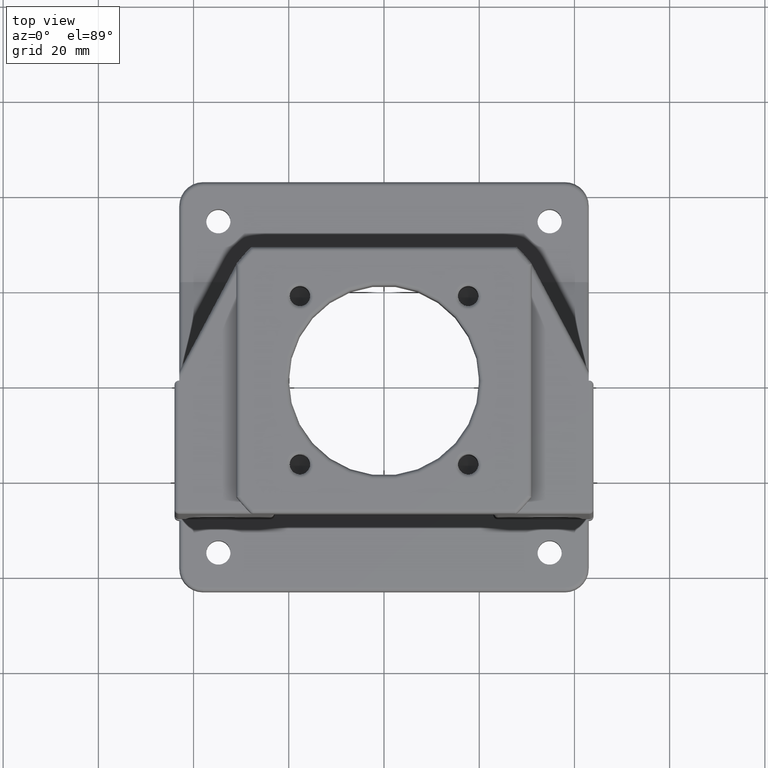
[diagram: clean part render]
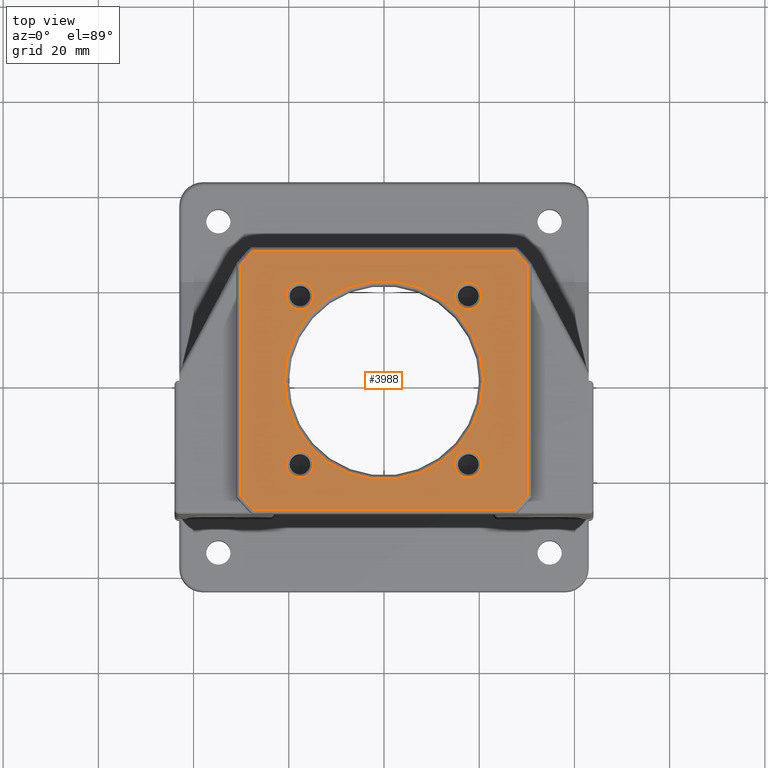
[diagram: same view with one face highlighted and labeled with its STEP entity id]
A machine part, top view. The second image highlights one B-rep face of the part: STEP entity #3988.
In plain terms, the highlighted planar face has unit normal (-0, 0, 1).
Its self-contained STEP definition (entity closure, byte-faithful):
#893 = CARTESIAN_POINT ( 'NONE',  ( 27.48726978075490000, -27.09999999999997700, 86.00000000000000000 ) ) ;
#969 = VERTEX_POINT ( 'NONE', #5564 ) ;
#1026 = VERTEX_POINT ( 'NONE', #5553 ) ;
#1119 = VERTEX_POINT ( 'NONE', #893 ) ;
#1343 = CIRCLE ( 'NONE', #1354, 38.60000000000000100 ) ;
#1346 = CIRCLE ( 'NONE', #1357, 38.60000000000000100 ) ;
#1348 = CIRCLE ( 'NONE', #1352, 38.60000000000000100 ) ;
#1351 = VECTOR ( 'NONE', #1622, 1000.000000000000000 ) ;
#1352 = AXIS2_PLACEMENT_3D ( 'NONE', #1623, #1624, #1625 ) ;
#1353 = VECTOR ( 'NONE', #1627, 1000.000000000000000 ) ;
#1354 = AXIS2_PLACEMENT_3D ( 'NONE', #1628, #1629, #1630 ) ;
#1355 = VECTOR ( 'NONE', #1632, 1000.000000000000000 ) ;
#1356 = VECTOR ( 'NONE', #1634, 1000.000000000000000 ) ;
#1357 = AXIS2_PLACEMENT_3D ( 'NONE', #1635, #1636, #1637 ) ;
#1551 = PLANE ( 'NONE',  #6514 ) ;
#1552 = CARTESIAN_POINT ( 'NONE',  ( -30.99999999999998900, -27.99999999999997900, 86.00000000000000000 ) ) ;
#1553 = DIRECTION ( 'NONE',  ( -0.0000000000000000000, 0.0000000000000000000, 1.000000000000000000 ) ) ;
#1554 = DIRECTION ( 'NONE',  ( 1.000000000000000000, 0.0000000000000000000, 0.0000000000000000000 ) ) ;
#1621 = CARTESIAN_POINT ( 'NONE',  ( -30.09999999999998700, -24.47958332978730700, 86.00000000000000000 ) ) ;
#1622 = DIRECTION ( 'NONE',  ( 1.239088197126291300E-016, -1.000000000000000000, 0.0000000000000000000 ) ) ;
#1623 = CARTESIAN_POINT ( 'NONE',  ( 0.0000000000000000000, 0.0000000000000000000, 86.00000000000000000 ) ) ;
#1624 = DIRECTION ( 'NONE',  ( -0.0000000000000000000, 0.0000000000000000000, 1.000000000000000000 ) ) ;
#1625 = DIRECTION ( 'NONE',  ( 1.000000000000000000, 0.0000000000000000000, 0.0000000000000000000 ) ) ;
#1626 = CARTESIAN_POINT ( 'NONE',  ( -30.99999999999998900, 27.10000000000000100, 86.00000000000000000 ) ) ;
#1627 = DIRECTION ( 'NONE',  ( -1.000000000000000000, 0.0000000000000000000, -0.0000000000000000000 ) ) ;
#1628 = CARTESIAN_POINT ( 'NONE',  ( 0.0000000000000000000, 0.0000000000000000000, 86.00000000000000000 ) ) ;
#1629 = DIRECTION ( 'NONE',  ( -0.0000000000000000000, 0.0000000000000000000, 1.000000000000000000 ) ) ;
#1630 = DIRECTION ( 'NONE',  ( 1.000000000000000000, 0.0000000000000000000, 0.0000000000000000000 ) ) ;
#1631 = CARTESIAN_POINT ( 'NONE',  ( 30.09999999999999800, 24.47958332978728900, 86.00000000000000000 ) ) ;
#1632 = DIRECTION ( 'NONE',  ( -1.239088197126291300E-016, 1.000000000000000000, -0.0000000000000000000 ) ) ;
#1633 = CARTESIAN_POINT ( 'NONE',  ( 27.86126343151009300, -27.09999999999997700, 86.00000000000000000 ) ) ;
#1634 = DIRECTION ( 'NONE',  ( 1.000000000000000000, 1.734723475976806800E-016, 0.0000000000000000000 ) ) ;
#1635 = CARTESIAN_POINT ( 'NONE',  ( 0.0000000000000000000, 0.0000000000000000000, 86.00000000000000000 ) ) ;
#1636 = DIRECTION ( 'NONE',  ( -0.0000000000000000000, 0.0000000000000000000, 1.000000000000000000 ) ) ;
#1637 = DIRECTION ( 'NONE',  ( 1.000000000000000000, 0.0000000000000000000, 0.0000000000000000000 ) ) ;
#2225 = CARTESIAN_POINT ( 'NONE',  ( 30.09999999999999800, 24.16505741768474600, 86.00000000000000000 ) ) ;
#2230 = CARTESIAN_POINT ( 'NONE',  ( -30.09999999999999400, 24.16505741768474300, 86.00000000000000000 ) ) ;
#2233 = CARTESIAN_POINT ( 'NONE',  ( -27.48726978075487200, 27.10000000000000100, 86.00000000000000000 ) ) ;
#2234 = CARTESIAN_POINT ( 'NONE',  ( -30.09999999999998700, -24.16505741768475700, 86.00000000000000000 ) ) ;
#2235 = CARTESIAN_POINT ( 'NONE',  ( 27.48726978075487200, 27.10000000000000100, 86.00000000000000000 ) ) ;
#2761 = CARTESIAN_POINT ( 'NONE',  ( 14.77987732352786100, 17.67766952966372100, 86.00000000000000000 ) ) ;
#2806 = CARTESIAN_POINT ( 'NONE',  ( 20.90000000000000200, 0.0000000000000000000, 86.00000000000000000 ) ) ;
#2807 = CARTESIAN_POINT ( 'NONE',  ( -20.90000000000000200, 2.559511810217968700E-015, 86.00000000000000000 ) ) ;
#2810 = CARTESIAN_POINT ( 'NONE',  ( -14.77987732352798900, 17.67766952966358600, 86.00000000000000000 ) ) ;
#2811 = CARTESIAN_POINT ( 'NONE',  ( -20.57546173579957500, 17.67766952966358600, 86.00000000000000000 ) ) ;
#2814 = CARTESIAN_POINT ( 'NONE',  ( -14.77987732352798600, -17.67766952966359300, 86.00000000000000000 ) ) ;
#2815 = CARTESIAN_POINT ( 'NONE',  ( -20.57546173579957100, -17.67766952966359300, 86.00000000000000000 ) ) ;
#2818 = CARTESIAN_POINT ( 'NONE',  ( 20.57546173579944700, -17.67766952966372100, 86.00000000000000000 ) ) ;
#2819 = CARTESIAN_POINT ( 'NONE',  ( 14.77987732352786100, -17.67766952966372100, 86.00000000000000000 ) ) ;
#2821 = CARTESIAN_POINT ( 'NONE',  ( 20.57546173579944700, 17.67766952966372100, 86.00000000000000000 ) ) ;
#2977 = CARTESIAN_POINT ( 'NONE',  ( 17.67766952966365300, 17.67766952966372100, 86.00000000000000000 ) ) ;
#3000 = DIRECTION ( 'NONE',  ( 1.000000000000000000, 0.0000000000000000000, 0.0000000000000000000 ) ) ;
#3002 = DIRECTION ( 'NONE',  ( 0.0000000000000000000, -0.0000000000000000000, -1.000000000000000000 ) ) ;
#3116 = ORIENTED_EDGE ( 'NONE', *, *, #3899, .T. ) ;
#3118 = ORIENTED_EDGE ( 'NONE', *, *, #3898, .T. ) ;
#3120 = ORIENTED_EDGE ( 'NONE', *, *, #3900, .T. ) ;
#3121 = ORIENTED_EDGE ( 'NONE', *, *, #3834, .T. ) ;
#3122 = ORIENTED_EDGE ( 'NONE', *, *, #3901, .T. ) ;
#3123 = ORIENTED_EDGE ( 'NONE', *, *, #3830, .T. ) ;
#3124 = ORIENTED_EDGE ( 'NONE', *, *, #3902, .T. ) ;
#3125 = ORIENTED_EDGE ( 'NONE', *, *, #3826, .T. ) ;
#3128 = ORIENTED_EDGE ( 'NONE', *, *, #3822, .T. ) ;
#3129 = ORIENTED_EDGE ( 'NONE', *, *, #3818, .T. ) ;
#3365 = EDGE_LOOP ( 'NONE', ( #3120, #3125 ) ) ;
#3368 = EDGE_LOOP ( 'NONE', ( #3116, #3123 ) ) ;
#3369 = EDGE_LOOP ( 'NONE', ( #3725, #3723, #3724, #3722, #3721, #3720, #3719, #3718 ) ) ;
#3371 = EDGE_LOOP ( 'NONE', ( #3118, #3121 ) ) ;
#3385 = EDGE_LOOP ( 'NONE', ( #3124, #3129 ) ) ;
#3396 = EDGE_LOOP ( 'NONE', ( #3122, #3128 ) ) ;
#3545 = DIRECTION ( 'NONE',  ( 0.0000000000000000000, -0.0000000000000000000, -1.000000000000000000 ) ) ;
#3547 = CARTESIAN_POINT ( 'NONE',  ( 17.67766952966365300, -17.67766952966372100, 86.00000000000000000 ) ) ;
#3718 = ORIENTED_EDGE ( 'NONE', *, *, #3897, .T. ) ;
#3719 = ORIENTED_EDGE ( 'NONE', *, *, #4017, .T. ) ;
#3720 = ORIENTED_EDGE ( 'NONE', *, *, #4018, .T. ) ;
#3721 = ORIENTED_EDGE ( 'NONE', *, *, #4019, .T. ) ;
#3722 = ORIENTED_EDGE ( 'NONE', *, *, #4020, .T. ) ;
#3723 = ORIENTED_EDGE ( 'NONE', *, *, #4023, .T. ) ;
#3724 = ORIENTED_EDGE ( 'NONE', *, *, #4021, .T. ) ;
#3725 = ORIENTED_EDGE ( 'NONE', *, *, #4022, .T. ) ;
#3818 = EDGE_CURVE ( 'NONE', #6618, #7203, #7391, .T. ) ;
#3822 = EDGE_CURVE ( 'NONE', #7201, #7200, #7399, .T. ) ;
#3826 = EDGE_CURVE ( 'NONE', #7197, #7196, #7407, .T. ) ;
#3830 = EDGE_CURVE ( 'NONE', #7193, #7192, #7415, .T. ) ;
#3834 = EDGE_CURVE ( 'NONE', #7189, #7188, #7423, .T. ) ;
#3897 = EDGE_CURVE ( 'NONE', #4865, #1026, #6587, .T. ) ;
#3898 = EDGE_CURVE ( 'NONE', #7188, #7189, #6589, .T. ) ;
#3899 = EDGE_CURVE ( 'NONE', #7192, #7193, #6562, .T. ) ;
#3900 = EDGE_CURVE ( 'NONE', #7196, #7197, #6520, .T. ) ;
#3901 = EDGE_CURVE ( 'NONE', #7200, #7201, #6576, .T. ) ;
#3902 = EDGE_CURVE ( 'NONE', #7203, #6618, #6591, .T. ) ;
#3988 = ADVANCED_FACE ( 'NONE', ( #4515, #4516, #4517, #4518, #4519, #4520 ), #1551, .T. ) ;
#4017 = EDGE_CURVE ( 'NONE', #4861, #4865, #4541, .T. ) ;
#4018 = EDGE_CURVE ( 'NONE', #4864, #4861, #1348, .T. ) ;
#4019 = EDGE_CURVE ( 'NONE', #4866, #4864, #4542, .T. ) ;
#4020 = EDGE_CURVE ( 'NONE', #4856, #4866, #1343, .T. ) ;
#4021 = EDGE_CURVE ( 'NONE', #969, #4856, #4543, .T. ) ;
#4022 = EDGE_CURVE ( 'NONE', #1026, #1119, #4544, .T. ) ;
#4023 = EDGE_CURVE ( 'NONE', #1119, #969, #1346, .T. ) ;
#4515 = FACE_OUTER_BOUND ( 'NONE', #3369, .T. ) ;
#4516 = FACE_BOUND ( 'NONE', #3371, .T. ) ;
#4517 = FACE_BOUND ( 'NONE', #3368, .T. ) ;
#4518 = FACE_BOUND ( 'NONE', #3365, .T. ) ;
#4519 = FACE_BOUND ( 'NONE', #3396, .T. ) ;
#4520 = FACE_BOUND ( 'NONE', #3385, .T. ) ;
#4541 = LINE ( 'NONE', #1621, #1351 ) ;
#4542 = LINE ( 'NONE', #1626, #1353 ) ;
#4543 = LINE ( 'NONE', #1631, #1355 ) ;
#4544 = LINE ( 'NONE', #1633, #1356 ) ;
#4727 = DIRECTION ( 'NONE',  ( 1.000000000000000000, 0.0000000000000000000, 0.0000000000000000000 ) ) ;
#4731 = CARTESIAN_POINT ( 'NONE',  ( -17.67766952966378100, 17.67766952966358600, 86.00000000000000000 ) ) ;
#4733 = DIRECTION ( 'NONE',  ( 0.0000000000000000000, -0.0000000000000000000, -1.000000000000000000 ) ) ;
#4734 = DIRECTION ( 'NONE',  ( 1.000000000000000000, 0.0000000000000000000, 0.0000000000000000000 ) ) ;
#4740 = DIRECTION ( 'NONE',  ( -0.0000000000000000000, 0.0000000000000000000, 1.000000000000000000 ) ) ;
#4743 = DIRECTION ( 'NONE',  ( 1.000000000000000000, 0.0000000000000000000, 0.0000000000000000000 ) ) ;
#4745 = CARTESIAN_POINT ( 'NONE',  ( 0.0000000000000000000, 0.0000000000000000000, 86.00000000000000000 ) ) ;
#4749 = DIRECTION ( 'NONE',  ( 0.0000000000000000000, -0.0000000000000000000, -1.000000000000000000 ) ) ;
#4765 = CARTESIAN_POINT ( 'NONE',  ( 0.0000000000000000000, 0.0000000000000000000, 86.00000000000000000 ) ) ;
#4817 = DIRECTION ( 'NONE',  ( 0.0000000000000000000, -0.0000000000000000000, -1.000000000000000000 ) ) ;
#4818 = DIRECTION ( 'NONE',  ( 1.000000000000000000, 0.0000000000000000000, 0.0000000000000000000 ) ) ;
#4822 = CARTESIAN_POINT ( 'NONE',  ( 17.67766952966365300, -17.67766952966372100, 86.00000000000000000 ) ) ;
#4824 = DIRECTION ( 'NONE',  ( 0.0000000000000000000, -0.0000000000000000000, -1.000000000000000000 ) ) ;
#4825 = DIRECTION ( 'NONE',  ( 1.000000000000000000, 0.0000000000000000000, 0.0000000000000000000 ) ) ;
#4827 = CARTESIAN_POINT ( 'NONE',  ( 17.67766952966365300, 17.67766952966372100, 86.00000000000000000 ) ) ;
#4828 = CARTESIAN_POINT ( 'NONE',  ( -17.67766952966377800, -17.67766952966359300, 86.00000000000000000 ) ) ;
#4829 = DIRECTION ( 'NONE',  ( 0.0000000000000000000, -0.0000000000000000000, -1.000000000000000000 ) ) ;
#4830 = DIRECTION ( 'NONE',  ( 1.000000000000000000, 0.0000000000000000000, 0.0000000000000000000 ) ) ;
#4856 = VERTEX_POINT ( 'NONE', #2225 ) ;
#4861 = VERTEX_POINT ( 'NONE', #2230 ) ;
#4864 = VERTEX_POINT ( 'NONE', #2233 ) ;
#4865 = VERTEX_POINT ( 'NONE', #2234 ) ;
#4866 = VERTEX_POINT ( 'NONE', #2235 ) ;
#5161 = CARTESIAN_POINT ( 'NONE',  ( -17.67766952966378100, 17.67766952966358600, 86.00000000000000000 ) ) ;
#5168 = DIRECTION ( 'NONE',  ( 1.000000000000000000, 0.0000000000000000000, 0.0000000000000000000 ) ) ;
#5184 = DIRECTION ( 'NONE',  ( 1.000000000000000000, 0.0000000000000000000, 0.0000000000000000000 ) ) ;
#5206 = CARTESIAN_POINT ( 'NONE',  ( 0.0000000000000000000, 0.0000000000000000000, 86.00000000000000000 ) ) ;
#5221 = DIRECTION ( 'NONE',  ( 1.000000000000000000, 0.0000000000000000000, 0.0000000000000000000 ) ) ;
#5231 = CARTESIAN_POINT ( 'NONE',  ( -17.67766952966377800, -17.67766952966359300, 86.00000000000000000 ) ) ;
#5240 = DIRECTION ( 'NONE',  ( 0.0000000000000000000, -0.0000000000000000000, -1.000000000000000000 ) ) ;
#5271 = DIRECTION ( 'NONE',  ( 0.0000000000000000000, -0.0000000000000000000, -1.000000000000000000 ) ) ;
#5279 = DIRECTION ( 'NONE',  ( 1.000000000000000000, 0.0000000000000000000, 0.0000000000000000000 ) ) ;
#5284 = DIRECTION ( 'NONE',  ( 0.0000000000000000000, -0.0000000000000000000, -1.000000000000000000 ) ) ;
#5553 = CARTESIAN_POINT ( 'NONE',  ( -27.48726978075488600, -27.09999999999998700, 86.00000000000000000 ) ) ;
#5564 = CARTESIAN_POINT ( 'NONE',  ( 30.10000000000000500, -24.16505741768473900, 86.00000000000000000 ) ) ;
#6514 = AXIS2_PLACEMENT_3D ( 'NONE', #1552, #1553, #1554 ) ;
#6520 = CIRCLE ( 'NONE', #6593, 2.897792206135792400 ) ;
#6562 = CIRCLE ( 'NONE', #6592, 2.897792206135792400 ) ;
#6576 = CIRCLE ( 'NONE', #6594, 2.897792206135792400 ) ;
#6587 = CIRCLE ( 'NONE', #6588, 38.60000000000000100 ) ;
#6588 = AXIS2_PLACEMENT_3D ( 'NONE', #4765, #4740, #4743 ) ;
#6589 = CIRCLE ( 'NONE', #6590, 20.90000000000000200 ) ;
#6590 = AXIS2_PLACEMENT_3D ( 'NONE', #4745, #4749, #4727 ) ;
#6591 = CIRCLE ( 'NONE', #6595, 2.897792206135792400 ) ;
#6592 = AXIS2_PLACEMENT_3D ( 'NONE', #4731, #4733, #4734 ) ;
#6593 = AXIS2_PLACEMENT_3D ( 'NONE', #4828, #4829, #4830 ) ;
#6594 = AXIS2_PLACEMENT_3D ( 'NONE', #4822, #4824, #4825 ) ;
#6595 = AXIS2_PLACEMENT_3D ( 'NONE', #4827, #4817, #4818 ) ;
#6618 = VERTEX_POINT ( 'NONE', #2761 ) ;
#7188 = VERTEX_POINT ( 'NONE', #2806 ) ;
#7189 = VERTEX_POINT ( 'NONE', #2807 ) ;
#7192 = VERTEX_POINT ( 'NONE', #2810 ) ;
#7193 = VERTEX_POINT ( 'NONE', #2811 ) ;
#7196 = VERTEX_POINT ( 'NONE', #2814 ) ;
#7197 = VERTEX_POINT ( 'NONE', #2815 ) ;
#7200 = VERTEX_POINT ( 'NONE', #2818 ) ;
#7201 = VERTEX_POINT ( 'NONE', #2819 ) ;
#7203 = VERTEX_POINT ( 'NONE', #2821 ) ;
#7391 = CIRCLE ( 'NONE', #7392, 2.897792206135792400 ) ;
#7392 = AXIS2_PLACEMENT_3D ( 'NONE', #2977, #3002, #3000 ) ;
#7399 = CIRCLE ( 'NONE', #7400, 2.897792206135792400 ) ;
#7400 = AXIS2_PLACEMENT_3D ( 'NONE', #3547, #3545, #5221 ) ;
#7407 = CIRCLE ( 'NONE', #7408, 2.897792206135792400 ) ;
#7408 = AXIS2_PLACEMENT_3D ( 'NONE', #5231, #5240, #5184 ) ;
#7415 = CIRCLE ( 'NONE', #7416, 2.897792206135792400 ) ;
#7416 = AXIS2_PLACEMENT_3D ( 'NONE', #5161, #5284, #5168 ) ;
#7423 = CIRCLE ( 'NONE', #7424, 20.90000000000000200 ) ;
#7424 = AXIS2_PLACEMENT_3D ( 'NONE', #5206, #5271, #5279 ) ;